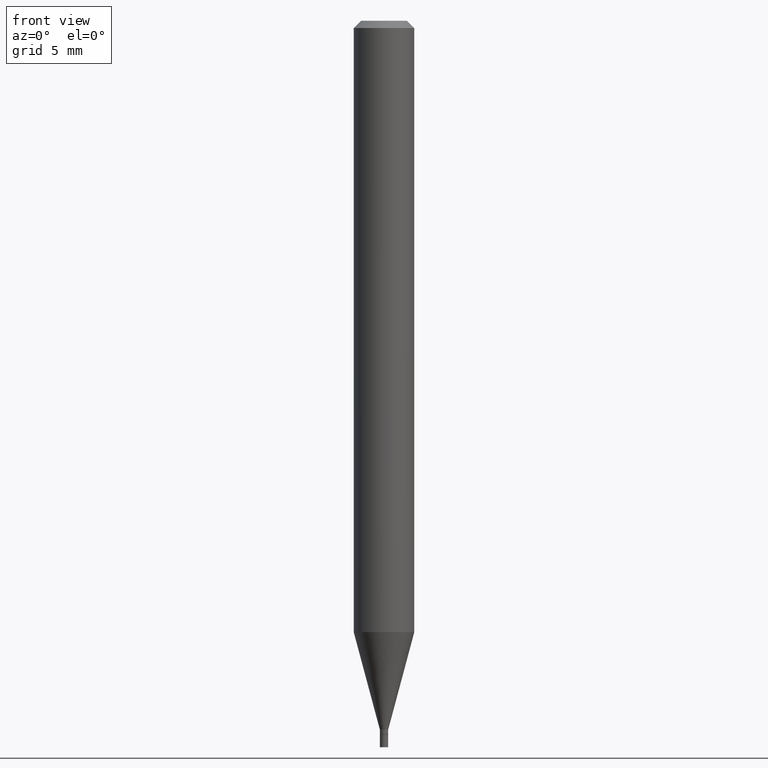
[diagram: clean part render]
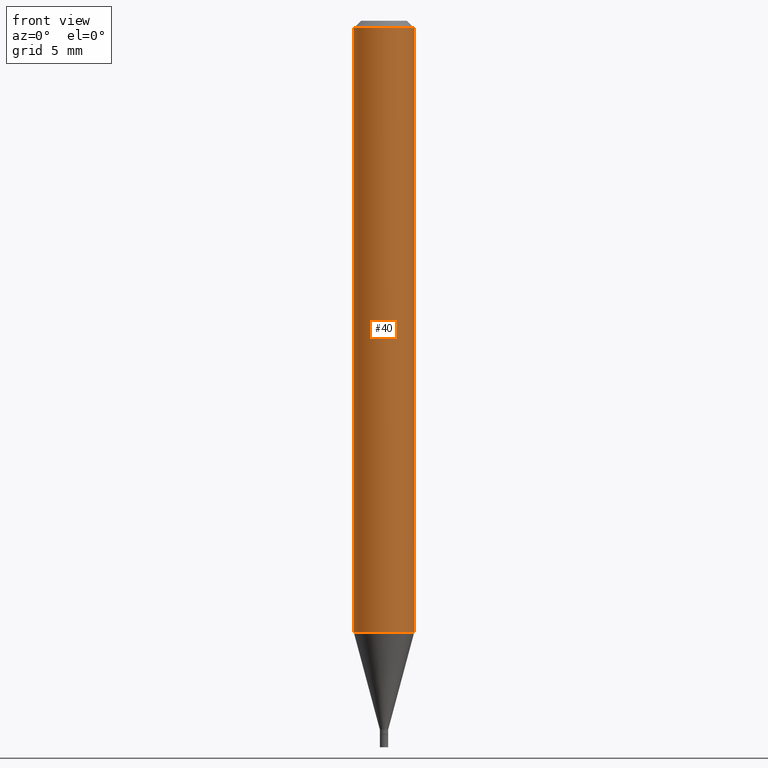
[diagram: same view with one face highlighted and labeled with its STEP entity id]
A machine part, front view. The second image highlights one B-rep face of the part: STEP entity #40.
In plain terms, the highlighted cylindrical surface (edge-blend (fillet) strip) has radius 1.5875 mm, axis along (-0, 0, 1).
Its self-contained STEP definition (entity closure, byte-faithful):
#21 = CARTESIAN_POINT ( 'NONE',  ( 0.06249999999999999306, -4.844323016908731836E-15, -1.262469256391280936 ) ) ;
#38 = FACE_OUTER_BOUND ( 'NONE', #61, .T. ) ;
#40 = ADVANCED_FACE ( 'NONE', ( #38 ), #311, .T. ) ;
#41 = LINE ( 'NONE', #184, #362 ) ;
#44 = DIRECTION ( 'NONE',  ( -2.445468806185136877E-29, 3.491481338843145188E-15, 1.000000000000000000 ) ) ;
#59 = DIRECTION ( 'NONE',  ( 1.000000000000000000, -6.982962677686262766E-15, 0.000000000000000000 ) ) ;
#61 = EDGE_LOOP ( 'NONE', ( #197, #444, #304, #137 ) ) ;
#74 = DIRECTION ( 'NONE',  ( -2.445468806185136877E-29, 3.491481338843145188E-15, 1.000000000000000000 ) ) ;
#80 = CARTESIAN_POINT ( 'NONE',  ( -0.06250000000000000000, -1.786040824967931204E-15, -0.01499999999999999944 ) ) ;
#82 = VERTEX_POINT ( 'NONE', #80 ) ;
#85 = EDGE_CURVE ( 'NONE', #167, #319, #310, .T. ) ;
#89 = AXIS2_PLACEMENT_3D ( 'NONE', #399, #222, #312 ) ;
#96 = CARTESIAN_POINT ( 'NONE',  ( 3.087329185272623202E-29, -4.407887849553340167E-15, -1.262469256391280936 ) ) ;
#134 = VERTEX_POINT ( 'NONE', #332 ) ;
#137 = ORIENTED_EDGE ( 'NONE', *, *, #429, .F. ) ;
#167 = VERTEX_POINT ( 'NONE', #21 ) ;
#171 = DIRECTION ( 'NONE',  ( -2.445468806185136597E-29, 3.491481338843145583E-15, 1.000000000000000000 ) ) ;
#184 = CARTESIAN_POINT ( 'NONE',  ( -0.06250000000000000000, 4.440892098500626162E-16, -3.074334431409316114E-30 ) ) ;
#197 = ORIENTED_EDGE ( 'NONE', *, *, #431, .F. ) ;
#204 = AXIS2_PLACEMENT_3D ( 'NONE', #96, #171, #59 ) ;
#222 = DIRECTION ( 'NONE',  ( -2.445468806185136597E-29, 3.491481338843145583E-15, 1.000000000000000000 ) ) ;
#282 = CARTESIAN_POINT ( 'NONE',  ( 0.000000000000000000, 0.000000000000000000, 0.000000000000000000 ) ) ;
#283 = AXIS2_PLACEMENT_3D ( 'NONE', #282, #428, #352 ) ;
#304 = ORIENTED_EDGE ( 'NONE', *, *, #85, .T. ) ;
#310 = LINE ( 'NONE', #354, #327 ) ;
#311 = CYLINDRICAL_SURFACE ( 'NONE', #283, 0.06250000000000000000 ) ;
#312 = DIRECTION ( 'NONE',  ( 1.000000000000000000, -6.982962677686266711E-15, 0.000000000000000000 ) ) ;
#319 = VERTEX_POINT ( 'NONE', #448 ) ;
#327 = VECTOR ( 'NONE', #44, 39.37007874015748143 ) ;
#332 = CARTESIAN_POINT ( 'NONE',  ( -0.06249999999999999306, -3.963798639703278339E-15, -1.262469256391280936 ) ) ;
#352 = DIRECTION ( 'NONE',  ( 1.000000000000000000, -6.982962677686266711E-15, 4.876176775795935793E-29 ) ) ;
#354 = CARTESIAN_POINT ( 'NONE',  ( 0.06250000000000000000, -4.364351673553916694E-16, 3.047610484872459871E-30 ) ) ;
#362 = VECTOR ( 'NONE', #74, 39.37007874015748143 ) ;
#398 = CIRCLE ( 'NONE', #204, 0.06250000000000000000 ) ;
#399 = CARTESIAN_POINT ( 'NONE',  ( 3.668203209277705088E-31, -5.237222008264718399E-17, -0.01499999999999999944 ) ) ;
#428 = DIRECTION ( 'NONE',  ( -2.445468806185136597E-29, 3.491481338843145583E-15, 1.000000000000000000 ) ) ;
#429 = EDGE_CURVE ( 'NONE', #82, #319, #454, .T. ) ;
#431 = EDGE_CURVE ( 'NONE', #134, #82, #41, .T. ) ;
#444 = ORIENTED_EDGE ( 'NONE', *, *, #456, .T. ) ;
#448 = CARTESIAN_POINT ( 'NONE',  ( 0.06250000000000000000, -4.888073874380388472E-16, -0.01499999999999999944 ) ) ;
#454 = CIRCLE ( 'NONE', #89, 0.06250000000000000000 ) ;
#456 = EDGE_CURVE ( 'NONE', #134, #167, #398, .T. ) ;